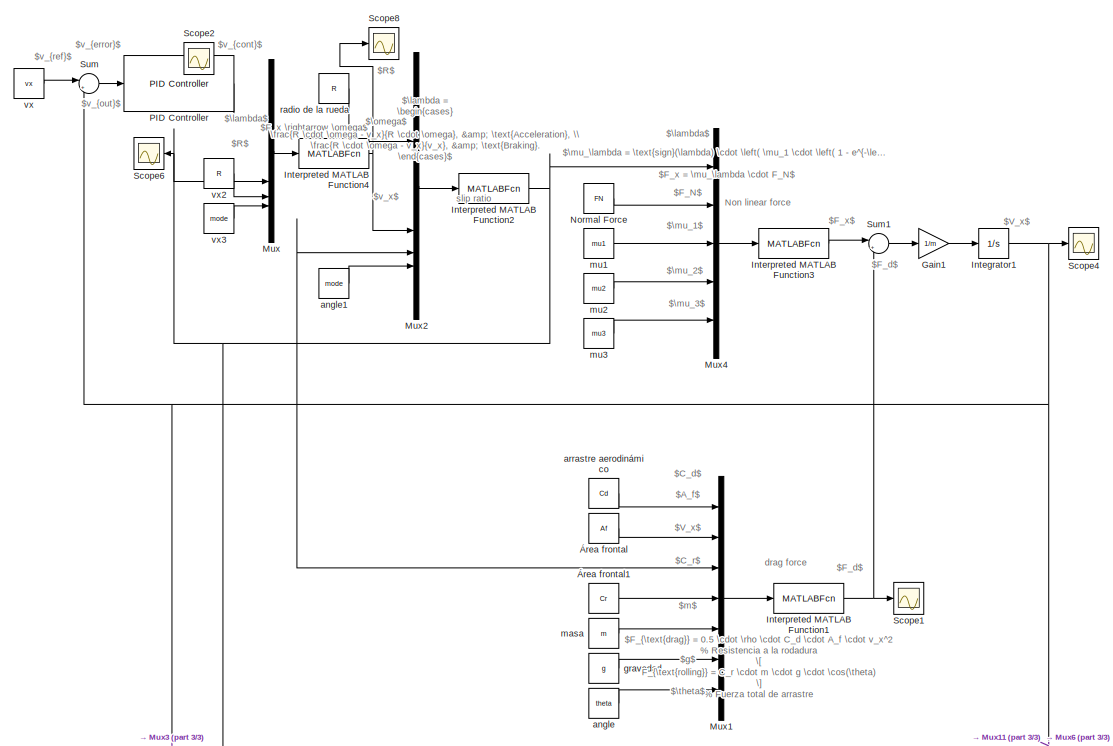
[diagram: root canvas - part 1/3, top center region]
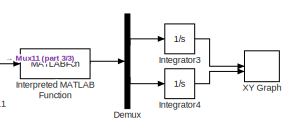
[diagram: root canvas - part 2/3, middle right region]
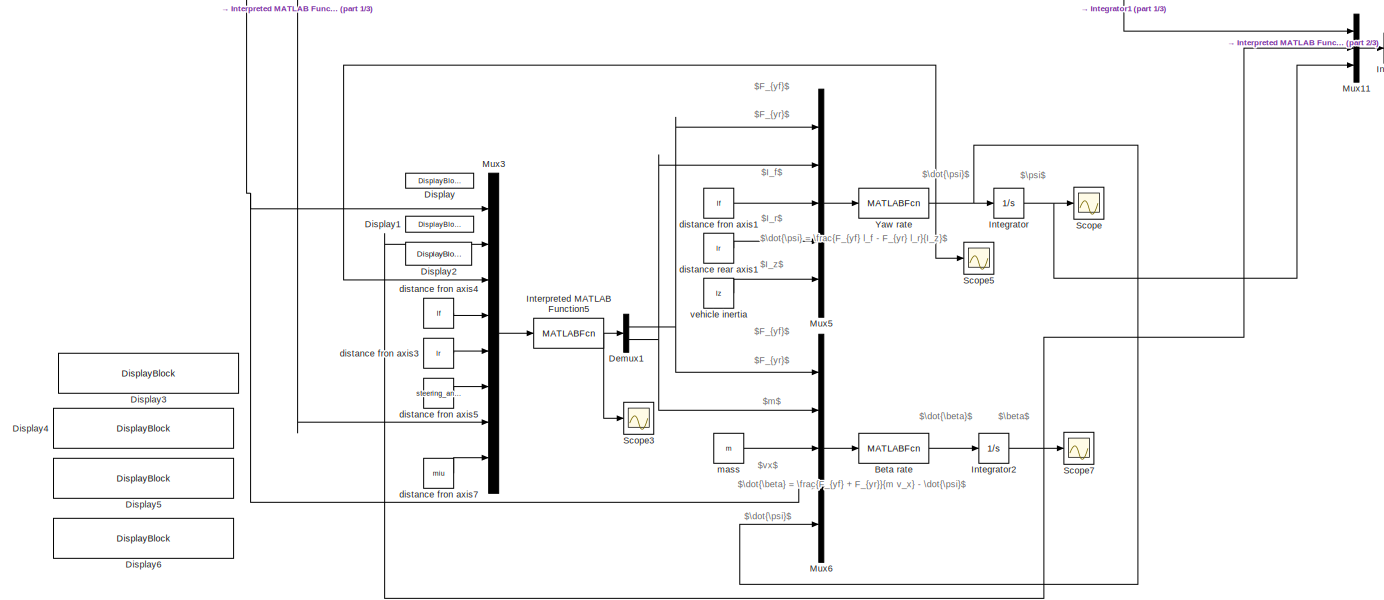
[diagram: root canvas - part 3/3, full width, bottom band]
MODEL slx_09e186321140
KIND model
CONFIG AbsTol = auto
CONFIG EnableMultiTasking = off
CONFIG FixedStep = auto
CONFIG MaxStep = auto
CONFIG MinStep = auto
CONFIG RelTol = 1e-3
CONFIG SampleTimeConstraint = Unconstrained
CONFIG SolverName = VariableStepAuto
CONFIG StartTime = 0.0
CONFIG StopTime = 10
BLOCK [MATLABFcn] Beta rate
  MATLABFcn = computeBetaRate
  NameLocation = top
BLOCK [Demux] Demux
  Outputs = 2
BLOCK [Demux] Demux1
  Outputs = 2
BLOCK [DisplayBlock] Display
  LabelPosition = Hide
  Transparency = 1
BLOCK [DisplayBlock] Display1
  LabelPosition = Hide
  Transparency = 1
BLOCK [DisplayBlock] Display2
  LabelPosition = Hide
  Layout = Fill available space
  Transparency = 1
BLOCK [DisplayBlock] Display3
  LabelPosition = Hide
  Transparency = 1
BLOCK [DisplayBlock] Display4
  LabelPosition = Hide
  Transparency = 1
BLOCK [DisplayBlock] Display5
  LabelPosition = Hide
  Transparency = 1
BLOCK [DisplayBlock] Display6
  LabelPosition = Hide
  Transparency = 1
BLOCK [Gain] Gain1
  Gain = 1/m
BLOCK [Integrator] Integrator
BLOCK [Integrator] Integrator1
BLOCK [Integrator] Integrator2
BLOCK [Integrator] Integrator3
BLOCK [Integrator] Integrator4
BLOCK [MATLABFcn] Interpreted MATLAB Function
  MATLABFcn = computeVehiclePosition
BLOCK [MATLABFcn] Interpreted MATLAB Function1
  MATLABFcn = drag_force
  Output1D = off
BLOCK [MATLABFcn] Interpreted MATLAB Function2
  MATLABFcn = slip_ratio
  Output1D = off
BLOCK [MATLABFcn] Interpreted MATLAB Function3
  MATLABFcn = nonlinear_force
  Output1D = off
BLOCK [MATLABFcn] Interpreted MATLAB Function4
  MATLABFcn = convertlw
  Output1D = off
  OutputDimensions = 1
BLOCK [MATLABFcn] Interpreted MATLAB Function5
  MATLABFcn = lateral_force
  OutputDimensions = 2
BLOCK [Mux] Mux
  DisplayOption = bar
BLOCK [Mux] Mux1
  DisplayOption = bar
  Inputs = 7
BLOCK [Mux] Mux11
  DisplayOption = bar
  Inputs = 3
BLOCK [Mux] Mux2
  DisplayOption = bar
BLOCK [Mux] Mux3
  DisplayOption = bar
  Inputs = 8
BLOCK [Mux] Mux4
  DisplayOption = bar
  Inputs = 5
BLOCK [Mux] Mux5
  DisplayOption = bar
  Inputs = 5
BLOCK [Mux] Mux6
  DisplayOption = bar
  Inputs = 5
BLOCK [Constant] Normal Force
  Value = FN
BLOCK [Reference] PID Controller  REF=slpidlib/PID Controller
  LibrarySourceBlock = simulink/Continuous/PID Controller
  SourceBlock = slpidlib/PID Controller
  SourceType = PID 1dof
BLOCK [Scope] Scope
  Floating = off
  NumInputPorts = 1
  ScopeSpecificationString = Simulink.scopes.TimeScopeBlockCfg('CurrentConfiguration', extmgr.ConfigurationSet(extmgr.Configuration('Core','General UI',true),extmgr.Configuration('Core','Source UI',true),extmgr.Configuration('Sources','WiredSimulink',true,'DataLoggingVariableName','ScopeData2'),extmgr.Configuration('Visuals','Time Domain',true,'SerializedDisplays',{struct('MinYLimReal','-0.77185','MaxYLimReal','6.9466','YLabe...<+1502ch>
BLOCK [Scope] Scope1
  Floating = off
  NumInputPorts = 1
  ScopeSpecificationString = Simulink.scopes.TimeScopeBlockCfg('CurrentConfiguration', extmgr.ConfigurationSet(extmgr.Configuration('Core','General UI',true),extmgr.Configuration('Core','Source UI',true),extmgr.Configuration('Sources','WiredSimulink',true,'DataLoggingVariableName','ScopeData1'),extmgr.Configuration('Visuals','Time Domain',true,'SerializedDisplays',{struct('MinYLimReal','105.25081','MaxYLimReal','165.8195','YL...<+1534ch>
BLOCK [Scope] Scope2
  Floating = off
  IOType = viewer
  NumInputPorts = 1
  ScopeSpecificationString = Simulink.scopes.TimeScopeBlockCfg('CurrentConfiguration', extmgr.ConfigurationSet(extmgr.Configuration('Core','General UI',true),extmgr.Configuration('Core','Source UI',true),extmgr.Configuration('Sources','WiredSimulink',true,'DataLoggingVariableName','ScopeData5'),extmgr.Configuration('Visuals','Time Domain',true,'SerializedDisplays',{struct('MinYLimReal','-1.25','MaxYLimReal','11.25','YLabelRea...<+1474ch>
BLOCK [Scope] Scope3
  Floating = off
  NumInputPorts = 1
  ScopeSpecificationString = Simulink.scopes.TimeScopeBlockCfg('CurrentConfiguration', extmgr.ConfigurationSet(extmgr.Configuration('Core','General UI',true),extmgr.Configuration('Core','Source UI',true),extmgr.Configuration('Sources','WiredSimulink',true,'DataLoggingVariableName','ScopeData3'),extmgr.Configuration('Visuals','Time Domain',true,'SerializedDisplays',{struct('MinYLimReal','-15.07927','MaxYLimReal','1.67547','YLa...<+1544ch>
BLOCK [Scope] Scope4
  Floating = off
  NumInputPorts = 1
  ScopeSpecificationString = Simulink.scopes.TimeScopeBlockCfg('CurrentConfiguration', extmgr.ConfigurationSet(extmgr.Configuration('Core','General UI',true),extmgr.Configuration('Core','Source UI',true),extmgr.Configuration('Sources','WiredSimulink',true),extmgr.Configuration('Visuals','Time Domain',true,'SerializedDisplays',{struct('MinYLimReal','-1.25673','MaxYLimReal','11.31058','YLabelReal','','MinYLimMag','0.00000','Max...<+1471ch>
BLOCK [Scope] Scope5
  Floating = off
  NumInputPorts = 1
  ScopeSpecificationString = Simulink.scopes.TimeScopeBlockCfg('CurrentConfiguration', extmgr.ConfigurationSet(extmgr.Configuration('Core','General UI',true),extmgr.Configuration('Core','Source UI',true),extmgr.Configuration('Sources','WiredSimulink',true,'DataLoggingVariableName','ScopeData1'),extmgr.Configuration('Visuals','Time Domain',true,'SerializedDisplays',{struct('MinYLimReal','-0.00074','MaxYLimReal','0.0067','YLabe...<+1452ch>
BLOCK [Scope] Scope6
  Floating = off
  NameLocation = top
  NumInputPorts = 1
  ScopeSpecificationString = Simulink.scopes.TimeScopeBlockCfg('CurrentConfiguration', extmgr.ConfigurationSet(extmgr.Configuration('Core','General UI',true),extmgr.Configuration('Core','Source UI',true),extmgr.Configuration('Sources','WiredSimulink',true,'DataLoggingVariableName','ScopeData1'),extmgr.Configuration('Visuals','Time Domain',true,'SerializedDisplays',{struct('MinYLimReal','-394.72948','MaxYLimReal','382.92325','...<+1509ch>
BLOCK [Scope] Scope7
  Floating = off
  NumInputPorts = 1
  ScopeSpecificationString = Simulink.scopes.TimeScopeBlockCfg('CurrentConfiguration', extmgr.ConfigurationSet(extmgr.Configuration('Core','General UI',true),extmgr.Configuration('Core','Source UI',true),extmgr.Configuration('Sources','WiredSimulink',true,'DataLoggingVariableName','ScopeData4'),extmgr.Configuration('Visuals','Time Domain',true,'SerializedDisplays',{struct('MinYLimReal','-29.24542','MaxYLimReal','263.20881','Y...<+1517ch>
BLOCK [Scope] Scope8
  Floating = off
  NumInputPorts = 1
  ScopeSpecificationString = Simulink.scopes.TimeScopeBlockCfg('CurrentConfiguration', extmgr.ConfigurationSet(extmgr.Configuration('Core','General UI',true),extmgr.Configuration('Core','Source UI',true),extmgr.Configuration('Sources','WiredSimulink',true,'DataLoggingVariableName','ScopeData2'),extmgr.Configuration('Visuals','Time Domain',true,'SerializedDisplays',{struct('MinYLimReal','-858.36213','MaxYLimReal','7725.37357',...<+1494ch>
BLOCK [Sum] Sum
  Inputs = |+-
BLOCK [Sum] Sum1
  Inputs = |+-
BLOCK [Record] XY Graph
  CompatibilityTag = XY
  FileSettingsInternal = {"entries":[{"content":{"excelSettings":{"content":{},"type":"Streamout.ExcelSettings"}},"type":"Streamout.FileSettingStorage","uuid":""}],"packageUris":["http:\/\/schema.mathworks.com\/mf0\/streamout_blocks\/R2020a"],"version":"1.0"}
  Layout = [1 1]
  RecordToWorkspace = on
  SignalsInternal = {"entries":[{"content":{"signals":[{"content":{"blockPath":[],"dimensions":[1],"domain":"","lineColor":"#a2142f","plots":[ 1 ],"port":1,"sid":[""],"signalID":1,"signalName":"Integrator3"},"type":"RecordBlkView.Signal","uuid":""},{"content":{"blockPath":[],"dimensions":[1],"domain":"","lineColor":"#139fff","plots":[ 1 ],"port":2,"sid":[""],"signalID":2,"signalName":"Integrator4"},"type":"RecordBlkV...<+168ch>
  VariableName = pos
  VisualizationBindings = {"xyplotplugin":{"info":[{"series":[{"bindingParametersList":[{"parameter":"X-Axis","signalID":1,"signalName":"Integrator3"},{"parameter":"Y-Axis","signalID":2,"signalName":"Integrator4"}],"seriesID":0}],"subplotID":1}]}}
BLOCK [MATLABFcn] Yaw rate
  MATLABFcn = computeYawRate
  NameLocation = top
BLOCK [Constant] angle
  Value = theta
  VectorParams1D = off
BLOCK [Constant] angle1
  Value = mode
BLOCK [Constant] arrastre aerodinámico
  Value = Cd
  VectorParams1D = off
BLOCK [Constant] distance fron axis1
  Value = lf
BLOCK [Constant] distance fron axis3
  Value = lr
BLOCK [Constant] distance fron axis4
  Value = lf
BLOCK [Constant] distance fron axis5
  Value = steering_angle
BLOCK [Constant] distance fron axis7
  Value = miu
BLOCK [Constant] distance rear axis1
  Value = lr
BLOCK [Constant] gravedad
  Value = g
  VectorParams1D = off
BLOCK [Constant] masa
  Value = m
  VectorParams1D = off
BLOCK [Constant] mass
  Value = m
BLOCK [Constant] mu1
  Value = mu1
BLOCK [Constant] mu2
  Value = mu2
BLOCK [Constant] mu3
  Value = mu3
BLOCK [Constant] radio de la rueda
  Value = R
  VectorParams1D = off
BLOCK [Constant] vehicle inertia
  Value = Iz
BLOCK [Constant] vx
  Value = vx
  VectorParams1D = off
BLOCK [Constant] vx2
  SampleTime = R
  Value = R
  VectorParams1D = off
BLOCK [Constant] vx3
  SampleTime = mode
  Value = mode
  VectorParams1D = off
BLOCK [Constant] Área frontal
  Value = Af
  VectorParams1D = off
BLOCK [Constant] Área frontal1
  Value = Cr
  VectorParams1D = off
ANNOTATION (root): $A_f$
ANNOTATION (root): $C_d$
ANNOTATION (root): $C_r$
ANNOTATION (root): $F_N$
ANNOTATION (root): $F_d$
ANNOTATION (root): $F_x = \mu_\lambda \cdot F_N$
ANNOTATION (root): $F_x \rightarrow \omega$
ANNOTATION (root): $F_x$
ANNOTATION (root): $F_{\text{drag}} = 0.5 \cdot \rho \cdot C_d \cdot A_f \cdot v_x^2 % Resistencia a la rodadura \[ F_{\text{rolling}} = C_r \cdot m \cdot g \cdot \cos(\theta) \] % Fuerza total de arrastre \[ F_D = F_{\text{drag}} + F_{\text{rolling}} \]$
ANNOTATION (root): $R$
ANNOTATION (root): $V_x$
ANNOTATION (root): $\dot{\beta} = \frac{F_{yf} + F_{yr}}{m v_x} - \dot{\psi}$
ANNOTATION (root): $\dot{\psi} = \frac{F_{yf} l_f - F_{yr} l_r}{I_z}$
ANNOTATION (root): $\lambda$
ANNOTATION (root): $\mu_1$
ANNOTATION (root): $\mu_2$
ANNOTATION (root): $\mu_3$
ANNOTATION (root): $\mu_\lambda = \text{sign}(\lambda) \cdot \left( \mu_1 \cdot \left( 1 - e^{-\left| \lambda \right| \cdot \mu_2} \right) - \left| \lambda \right| \cdot \mu_3 \right)$
ANNOTATION (root): $\omega$
ANNOTATION (root): $\theta$
ANNOTATION (root): $g$
ANNOTATION (root): $m$
ANNOTATION (root): $v_x$
ANNOTATION (root): $v_{cont}$
ANNOTATION (root): $v_{error}$
ANNOTATION (root): $v_{out}$
ANNOTATION (root): $v_{ref}$
ANNOTATION (root): $F_{yf}$
ANNOTATION (root): $F_{yr}$
ANNOTATION (root): $I_f$
ANNOTATION (root): $I_r$
ANNOTATION (root): $I_z$
ANNOTATION (root): $\beta$
ANNOTATION (root): $\dot{\beta}$
ANNOTATION (root): $\dot{\psi}$
ANNOTATION (root): $\psi$
ANNOTATION (root): $vx$
ANNOTATION (root): $\lambda = \begin{cases} \frac{R \cdot \omega - v_x}{R \cdot \omega}, & \text{Acceleration}, \\ \frac{R \cdot \omega - v_x}{v_x}, & \text{Braking}. \end{cases}$
ANNOTATION (root): Non linear force
ANNOTATION (root): drag force
ANNOTATION (root): slip ratio
LINE Beta rate:1 -> Integrator2:1
NET Demux1:1 -> Mux5:1, Mux6:1
NET Demux1:2 -> Mux5:2, Mux6:2
LINE Demux:1 -> Integrator3:1
LINE Demux:2 -> Integrator4:1
LINE Gain1:1 -> Integrator1:1
NET Integrator1:1 -> Mux11:1, Mux1:3, Mux2:3, Mux3:1, Mux6:4, Scope4:1, Sum:2
NET Integrator2:1 -> Mux11:2, Mux3:2, Scope7:1
LINE Integrator3:1 -> XY Graph:1
LINE Integrator4:1 -> XY Graph:2
NET Integrator:1 -> Mux11:3, Scope:1
NET Interpreted MATLAB Function1:1 -> Scope1:1, Sum1:2
NET Interpreted MATLAB Function2:1 -> Mux3:7, Mux4:1, Mux:2, Scope6:1
LINE Interpreted MATLAB Function3:1 -> Sum1:1
NET Interpreted MATLAB Function4:1 -> Mux2:2, Scope8:1
NET Interpreted MATLAB Function5:1 -> Demux1:1, Scope3:1
LINE Interpreted MATLAB Function:1 -> Demux:1
LINE Mux11:1 -> Interpreted MATLAB Function:1
LINE Mux1:1 -> Interpreted MATLAB Function1:1
LINE Mux2:1 -> Interpreted MATLAB Function2:1
LINE Mux3:1 -> Interpreted MATLAB Function5:1
LINE Mux4:1 -> Interpreted MATLAB Function3:1
LINE Mux5:1 -> Yaw rate:1
LINE Mux6:1 -> Beta rate:1
LINE Mux:1 -> Interpreted MATLAB Function4:1
LINE Normal Force:1 -> Mux4:2
LINE PID Controller:1 -> Mux:1
LINE Sum1:1 -> Gain1:1
LINE Sum:1 -> PID Controller:1
NET Yaw rate:1 -> Integrator:1, Mux3:3, Mux6:5, Scope5:1
LINE angle1:1 -> Mux2:4
LINE angle:1 -> Mux1:7
LINE arrastre aerodinámico:1 -> Mux1:1
LINE distance fron axis1:1 -> Mux5:3
LINE distance fron axis3:1 -> Mux3:5
LINE distance fron axis4:1 -> Mux3:4
LINE distance fron axis5:1 -> Mux3:6
LINE distance fron axis7:1 -> Mux3:8
LINE distance rear axis1:1 -> Mux5:4
LINE gravedad:1 -> Mux1:6
LINE masa:1 -> Mux1:5
LINE mass:1 -> Mux6:3
LINE mu1:1 -> Mux4:3
LINE mu2:1 -> Mux4:4
LINE mu3:1 -> Mux4:5
LINE radio de la rueda:1 -> Mux2:1
LINE vehicle inertia:1 -> Mux5:5
LINE vx2:1 -> Mux:3
LINE vx3:1 -> Mux:4
LINE vx:1 -> Sum:1
LINE Área frontal1:1 -> Mux1:4
LINE Área frontal:1 -> Mux1:2
note: NET lines group one-source signal fan-out (src -> all destinations, sorted); 1:1 wires keep LINE
